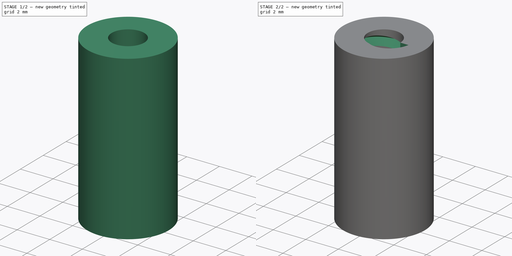
[diagram: build sequence overview — one tinted view per stage of 2, left to right]
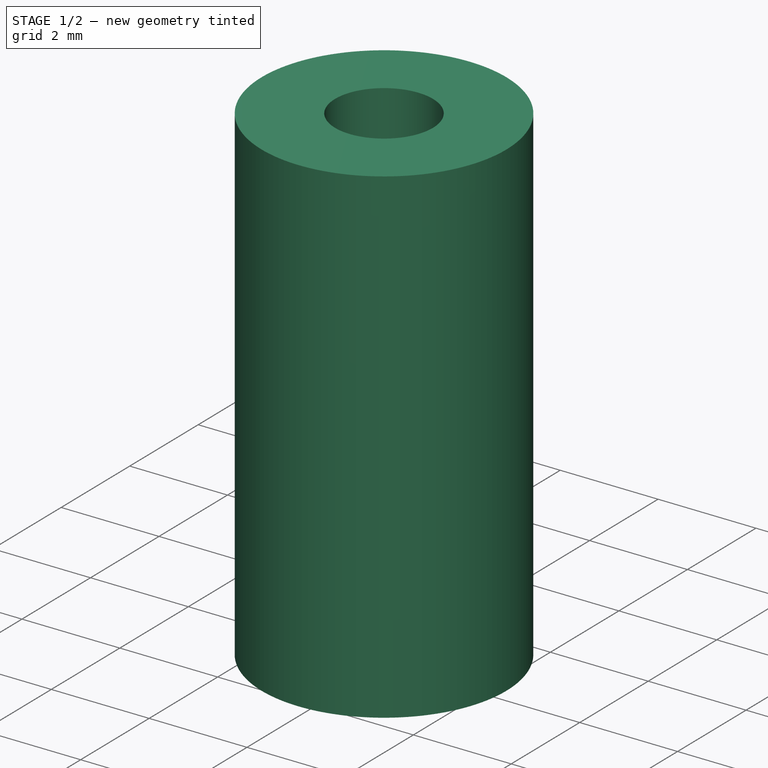
[diagram: stage 1 of 2 — iso view after this stage's code; geometry added in this stage tinted green]
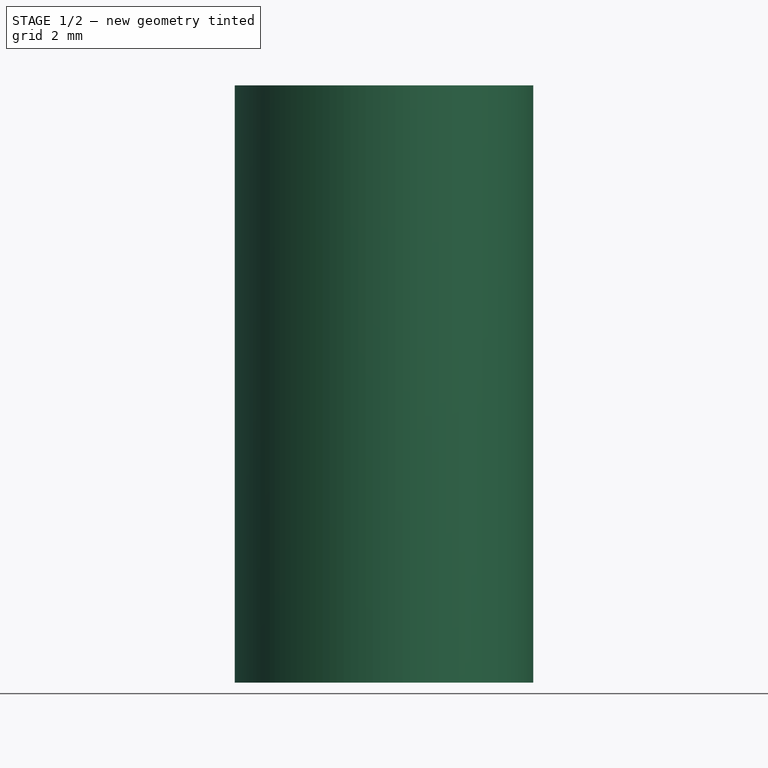
[diagram: stage 1 of 2 — front view after this stage's code; geometry added in this stage tinted green]
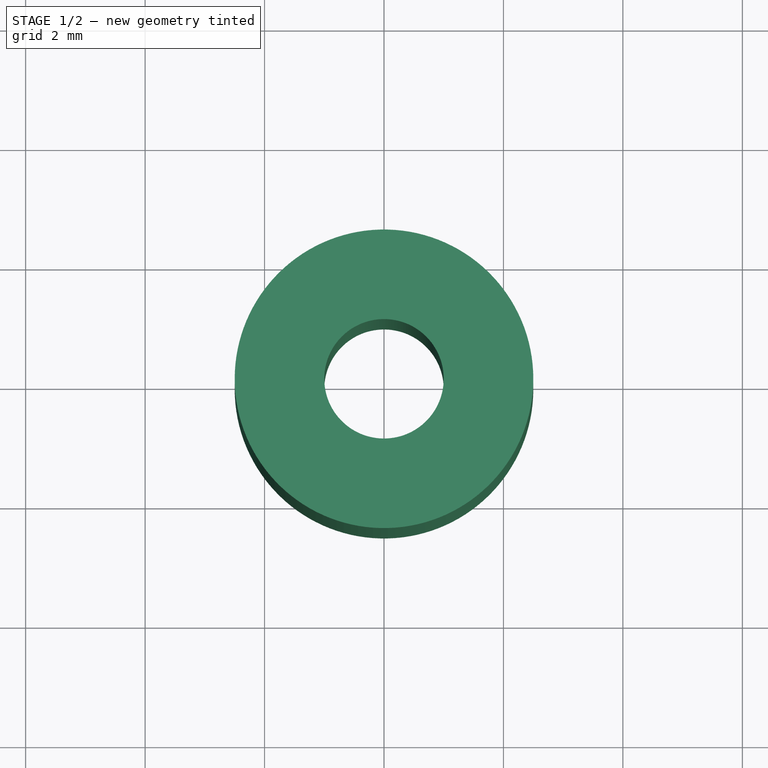
[diagram: stage 1 of 2 — top view after this stage's code; geometry added in this stage tinted green]
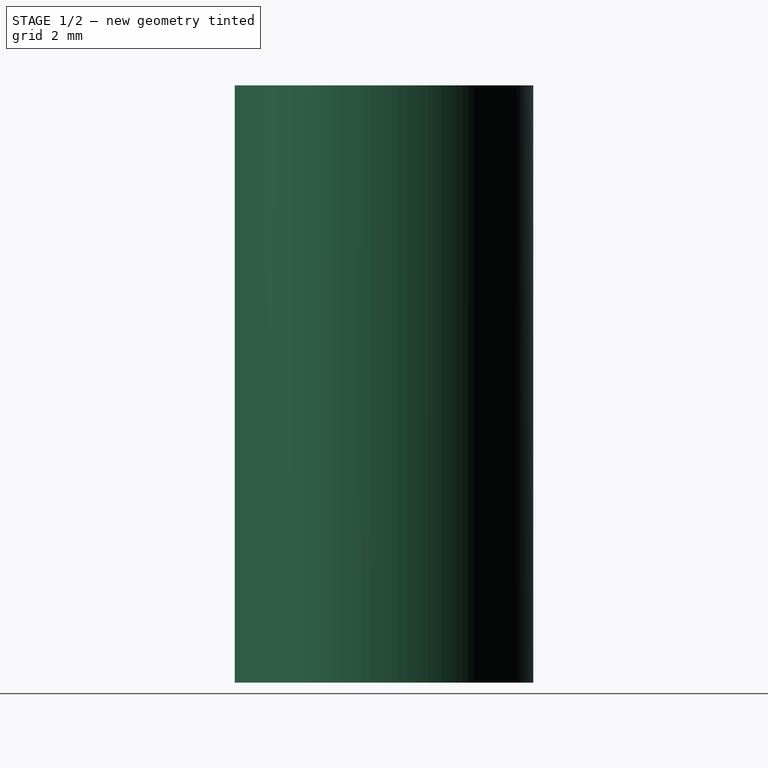
[diagram: stage 1 of 2 — right view after this stage's code; geometry added in this stage tinted green]
FCSTD DOCUMENT  (FreeCAD 0.18R16093 (Git))
Label: 2mm threaded hole
License: All rights reserved
LicenseURL: http://en.wikipedia.org/wiki/All_rights_reserved
objects: Sketcher::SketchObject×3, PartDesign::Pad×1, Part::Helix×1, Part::Sweep×1, PartDesign::Pocket×1, PartDesign::Body×1, Part::Cut×1
note: 11 computed .brp shape members not serialized (recipe doc carries the construction recipe); baked Part::Feature solids carry a one-line shape summary decoded from their .brp

FEATURE [Sketcher::SketchObject] Sketch025
  MapMode = 5
  Support = -> [XY_Plane006]
  sketch-geometry (1):
    g0: Circle CenterX=0 CenterY=0 CenterZ=0 NormalX=0 NormalY=0 NormalZ=1 AngleXU=0 Radius=2.5
  constraints (2):
    c: Coincident(g0,g-1)
    c: Diameter(g0) = 5
FEATURE [Sketcher::SketchObject] Sketch024
  MapMode = 5
  Placement = pos=(0,0,0) rot=(1,0,0;1.5708rad)
  Support = -> [XZ_Plane006]
  sketch-geometry (3):
    g0: LineSegment StartX=0.5 StartY=0.57735 StartZ=0 EndX=1.5 EndY=0 EndZ=0
    g1: LineSegment StartX=1.5 StartY=0 StartZ=0 EndX=0.5 EndY=-0.57735 EndZ=0
    g2: LineSegment StartX=0.5 StartY=-0.57735 StartZ=0 EndX=0.5 EndY=0.57735 EndZ=0
  constraints (9):
    c: Coincident(g0,g1)
    c: Coincident(g1,g2)
    c: Coincident(g2,g0)
    c: PointOnObject(g0,g-1)
    c: Equal(g0,g1)
    c: Vertical(g2)
    c: Angle(g0,g1) = 1.0472
    c: DistanceX(g-1,g0) = 1.5
    c: DistanceX(g-1,g0) = 0.5
FEATURE [PartDesign::Pad] Pad009
  Length = 10
  Length2 = 100
  Profile = -> Sketch025
  Type = 0
FEATURE [Sketcher::SketchObject] Sketch026
  MapMode = 5
  Placement = pos=(0,0,0) rot=(1,0,0;3.14159rad)
  Support = -> [Pad009]
  sketch-geometry (1):
    g0: Circle CenterX=0 CenterY=0 CenterZ=0 NormalX=0 NormalY=0 NormalZ=1 AngleXU=0 Radius=1
  constraints (2):
    c: Coincident(g-1,g0)
    c: Diameter(g0) = 2
FEATURE [PartDesign::Pocket] Pocket006
  BaseFeature = -> Pad009
  Length = 5
  Length2 = 100
  Profile = -> Sketch026
  Type = 1
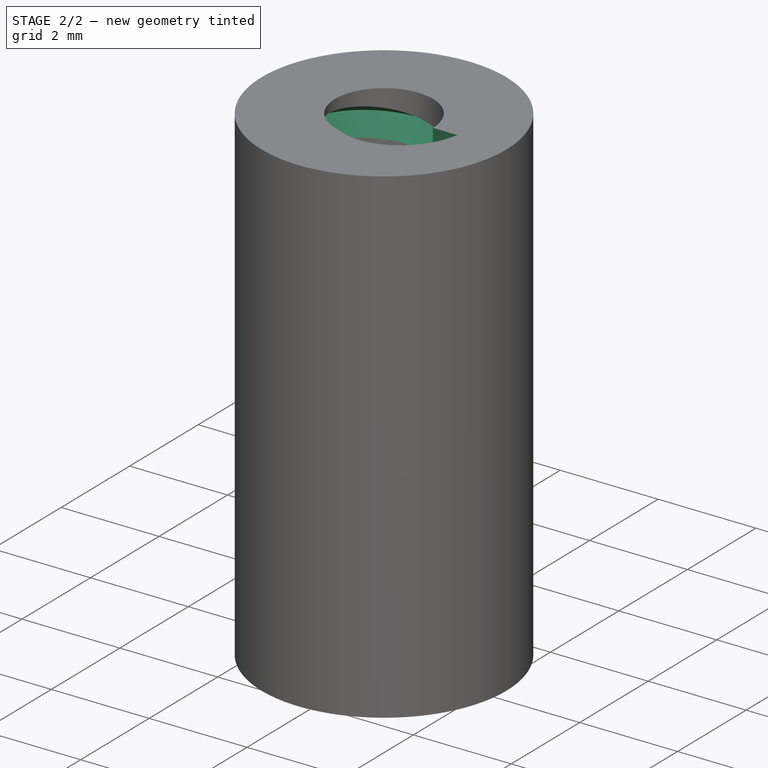
[diagram: stage 2 of 2 — iso view after this stage's code; geometry added in this stage tinted green]
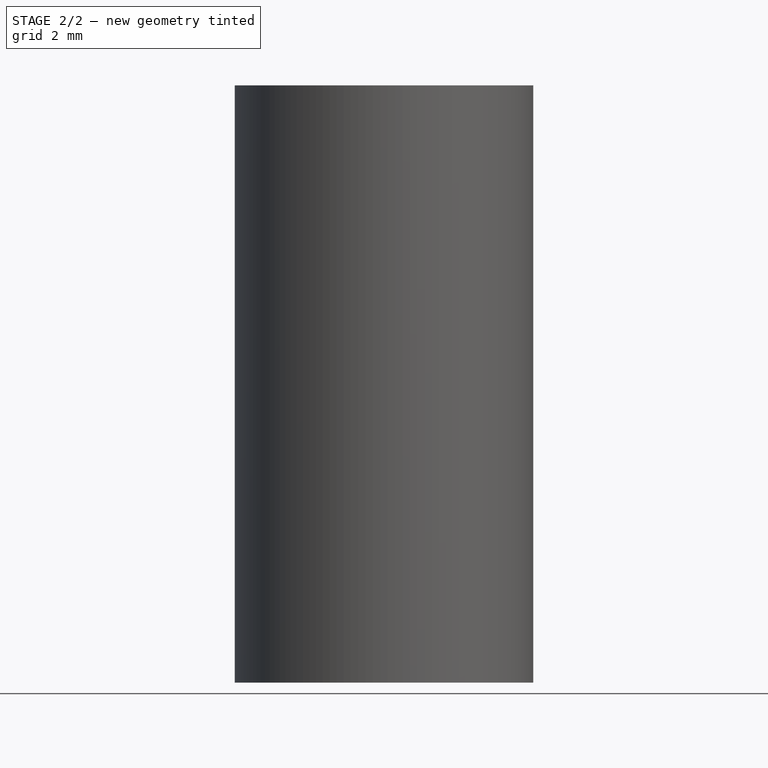
[diagram: stage 2 of 2 — front view after this stage's code; geometry added in this stage tinted green]
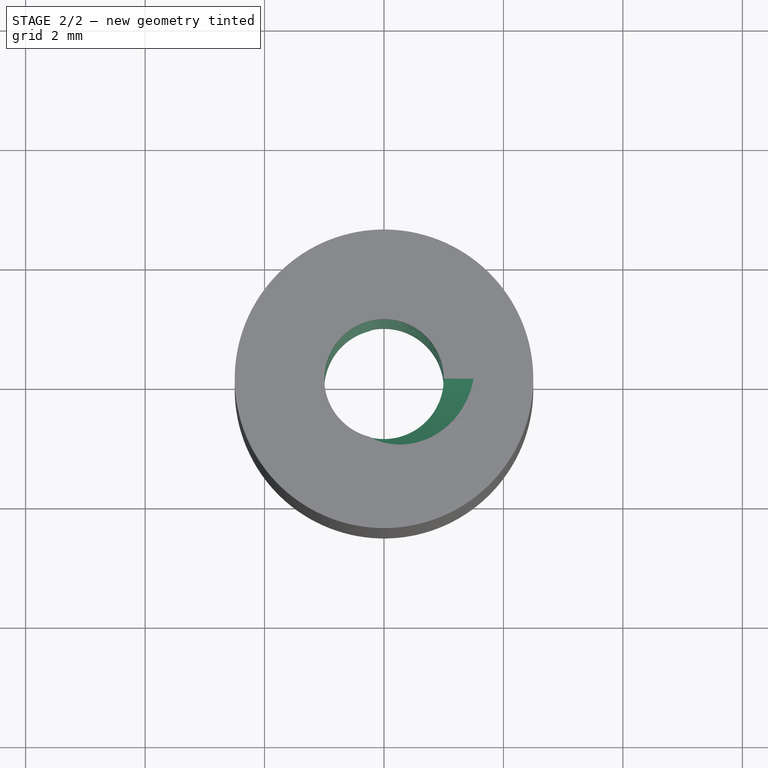
[diagram: stage 2 of 2 — top view after this stage's code; geometry added in this stage tinted green]
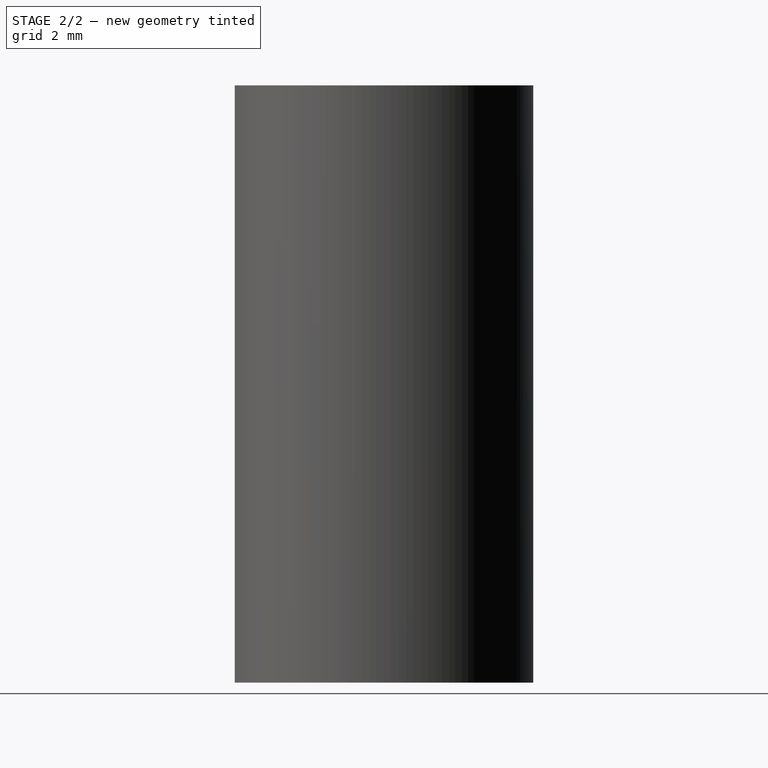
[diagram: stage 2 of 2 — right view after this stage's code; geometry added in this stage tinted green]
FEATURE [Part::Helix] Helix004  label="Helix003"
  Angle = 0
  AttacherType = Attacher::AttachEngine3D
  Height = 10
  LocalCoord = 0
  Pitch = 1
  Radius = 1
  Style = 1
FEATURE [Part::Sweep] Sweep004
  Frenet = true
  Sections = -> [Sketch024]
  Solid = true
  Spine = -> Helix004
  Transition = 1
FEATURE [PartDesign::Body] Body006  label="2mm screw hole001"
  Group = -> [Sketch025,Pad009,Sketch026,Pocket006,Sketch024]
  Origin = -> Origin006
  Tip = -> Pocket006
FEATURE [Part::Cut] Cut004  label="2mm screw hole threaded"
  Base = -> Body006
  Tool = -> Sweep004
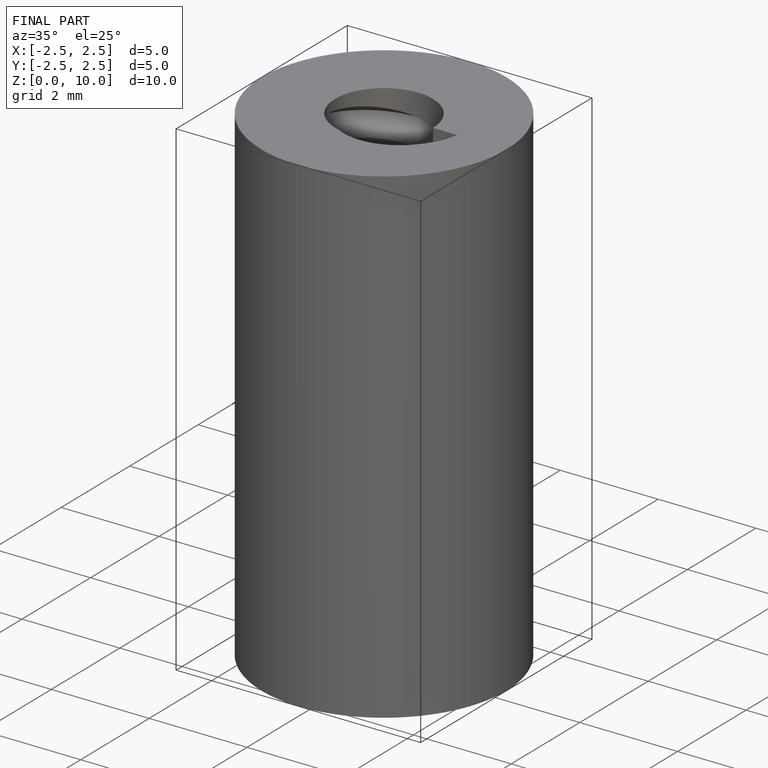
[diagram: finished part — iso view with bounding-box wireframe]
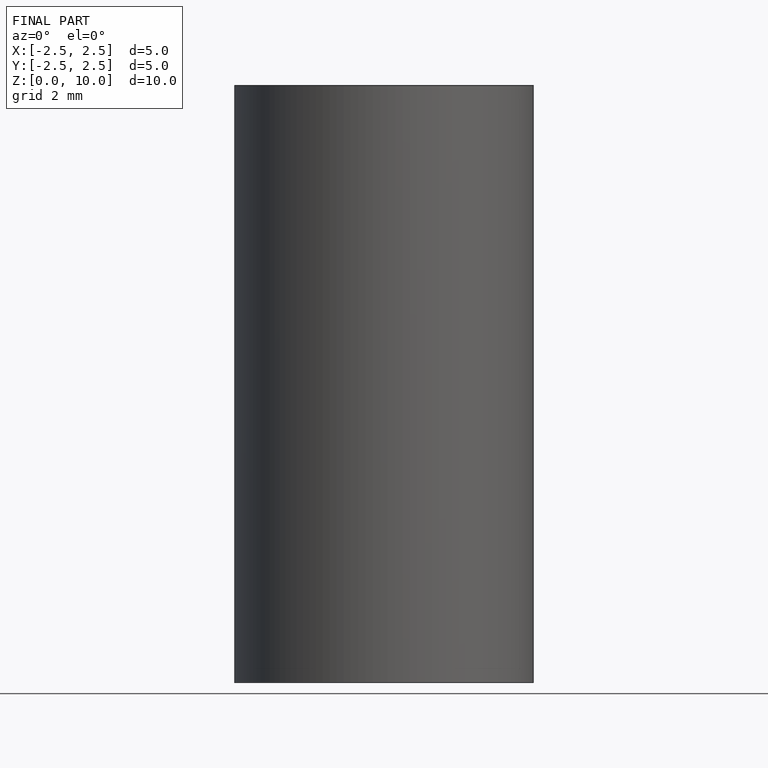
[diagram: finished part — front view with bounding-box wireframe]
